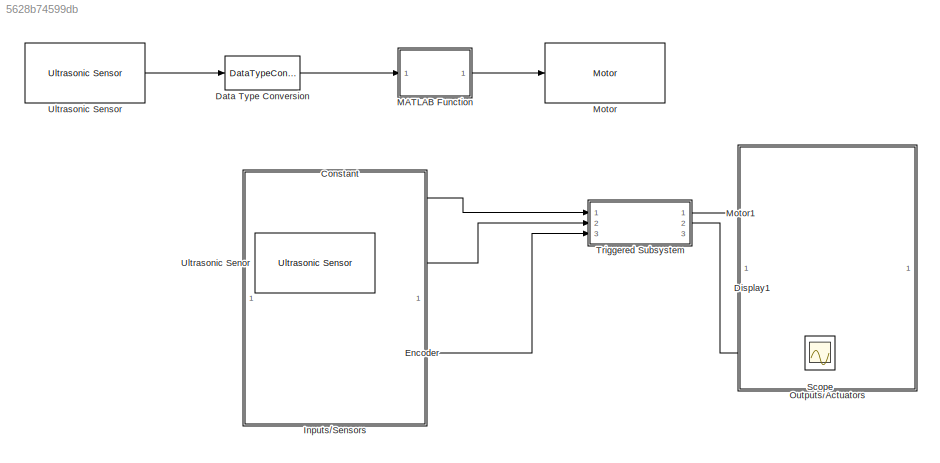
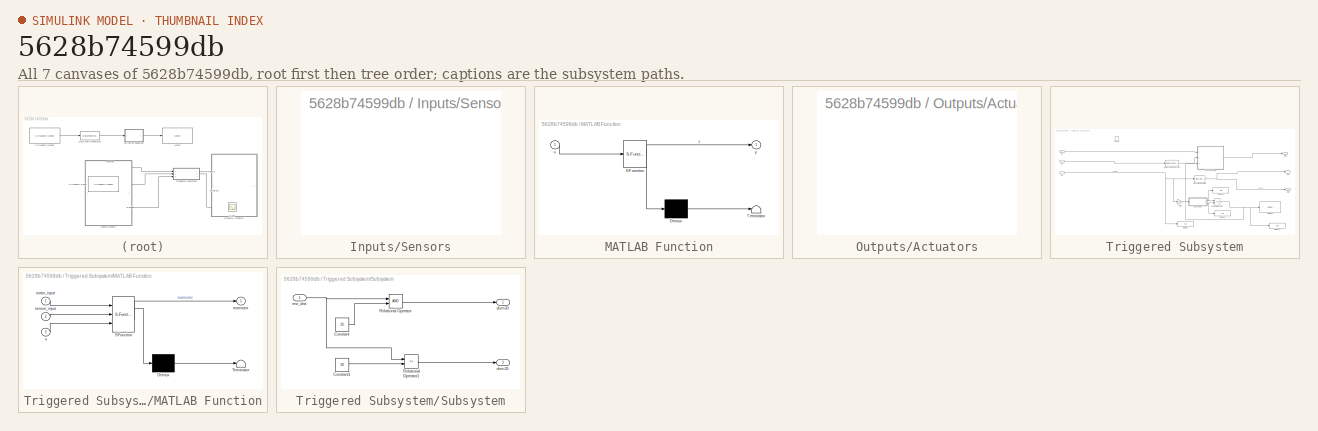
[diagram: thumbnail index - all 7 canvases of the model, root first then tree order]
MODEL slx_5628b74599db
KIND model
CONFIG AbsTol = auto
CONFIG FixedStep = auto
CONFIG MaxStep = auto
CONFIG MinStep = auto
CONFIG RelTol = 1e-3
CONFIG SampleTimeConstraint = Unconstrained
CONFIG Solver = ode3
CONFIG SolverMode = Auto
CONFIG SolverName = ode3
CONFIG StartTime = 0.0
CONFIG StopTime = 15
BLOCK [Constant] Constant
  Value = 20
BLOCK [DataTypeConversion] Data Type Conversion
  RndMeth = Floor
  SaturateOnIntegerOverflow = off
BLOCK [Display] Display1
  Decimation = 1
  Ports = [1]
BLOCK [Reference] Encoder  REF=legoev3lib/Encoder
  Ports = [0, 1]
  SourceBlock = legoev3lib/Encoder
  SourceType = LEGO MINDSTORMS EV3 Encoder
  opMode = No reset
  portNumber = A
  sampleTime = 0.01
BLOCK [SubSystem] Inputs//Sensors
  Ports = []
  RequestExecContextInheritance = off
  Variant = off
BLOCK [SubSystem] MATLAB Function
  ErrorFcn = Stateflow.Translate.translate
  PermitHierarchicalResolution = ParametersOnly
  Ports = [1, 1]
  RequestExecContextInheritance = off
  SFBlockType = MATLAB Function
  TreatAsAtomicUnit = on
  Variant = off
BLOCK [Demux] MATLAB Function/ Demux 
  Outputs = 1
  Ports = [1, 1]
BLOCK [S-Function] MATLAB Function/ SFunction 
  EnableBusSupport = off
  FunctionName = sf_sfun
  PortCounts = [1 2]
  Ports = [1, 2]
  SFunctionDeploymentMode = off
  Tag = Stateflow S-Function Main_detection 2
BLOCK [Terminator] MATLAB Function/ Terminator 
BLOCK [Inport] MATLAB Function/u
  IconDisplay = Port number
BLOCK [Outport] MATLAB Function/y
  IconDisplay = Port number
BLOCK [Reference] Motor  REF=legoev3lib/Motor
  Ports = [1]
  SourceBlock = legoev3lib/Motor
  SourceType = LEGO MINDSTORMS EV3 Motor
  sportNumber = A
  sstopAction = Brake
BLOCK [Reference] Motor1  REF=legoev3lib/Motor
  Ports = [1]
  SourceBlock = legoev3lib/Motor
  SourceType = LEGO MINDSTORMS EV3 Motor
  sportNumber = A
  sstopAction = Brake
BLOCK [SubSystem] Outputs//Actuators
  Ports = []
  RequestExecContextInheritance = off
  Variant = off
BLOCK [Scope] Scope
  DataFormat = StructureWithTime
  Decimation = 1
  Grid = on
  LimitDataPoints = off
  MaxDataPoints = 5000
  NumInputPorts = 1
  Ports = [1]
  SampleInput = off
  SampleTime = -1
  SaveName = acqData1
  SaveToWorkspace = on
  ShowLegends = off
  TickLabels = OneTimeTick
  TimeRange = auto
  YMax = 80
  YMin = -90
  ZoomMode = yonly
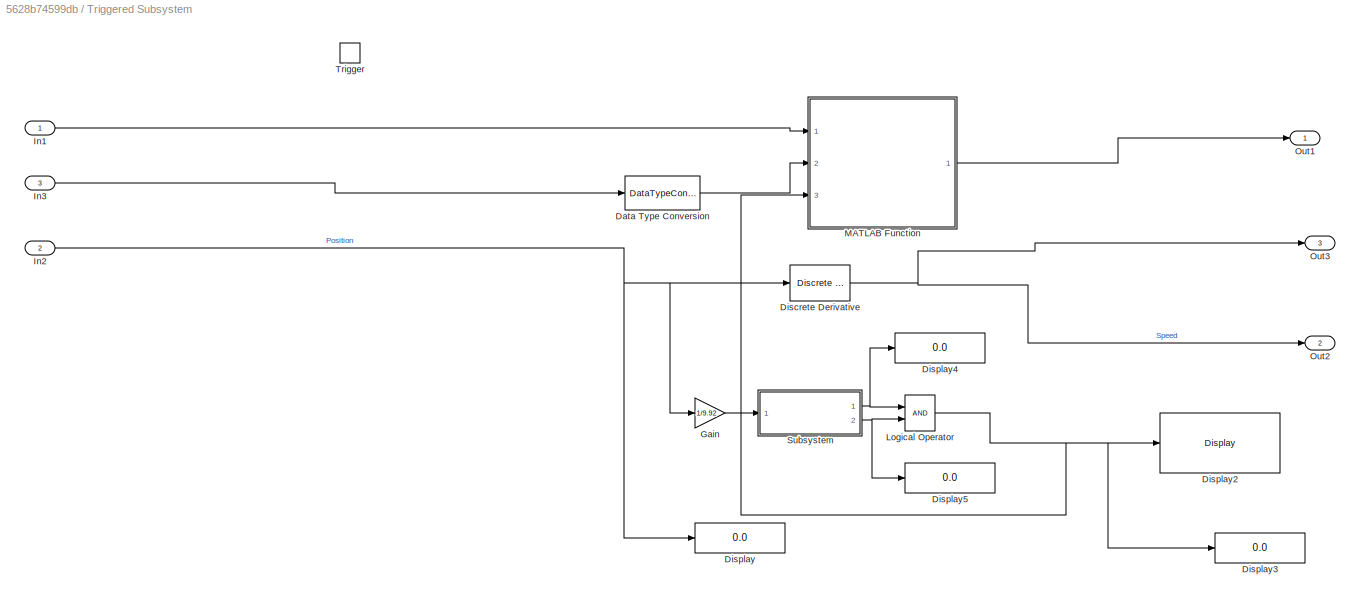
BLOCK [SubSystem] Triggered Subsystem
  Ports = [3, 3, 0, 1]
  RequestExecContextInheritance = off
  TreatAsAtomicUnit = on
  Variant = off
BLOCK [DataTypeConversion] Triggered Subsystem/Data Type Conversion
  RndMeth = Floor
  SaturateOnIntegerOverflow = off
BLOCK [Reference] Triggered Subsystem/Discrete Derivative  REF=simulink/Discrete/Discrete Derivative
  DoSatur = off
  ICPrevScaledInput = 800
  InputProcessing = Inherited
  LockScale = off
  OutDataType = fixdt(1, 16)
  OutDataTypeStr = double
  OutMax = []
  OutMin = []
  OutScaling = 2^-10
  OutputDataTypeScalingMode = double
  Ports = [1, 1]
  RndMeth = Floor
  SourceBlock = simulink/Discrete/Discrete Derivative
  SourceType = Discrete Derivative
  gainval = 1.0
BLOCK [Display] Triggered Subsystem/Display
  Decimation = 1
  Ports = [1]
BLOCK [Reference] Triggered Subsystem/Display2  REF=legoev3lib/Display
  Ports = [1]
  SourceBlock = legoev3lib/Display
  SourceType = LEGO MINDSTORMS EV3 Display
  slcdFormat = Decimal
  slcdLine = 1
  slcdStr = Obj_Det
BLOCK [Display] Triggered Subsystem/Display3
  Decimation = 1
  Ports = [1]
BLOCK [Display] Triggered Subsystem/Display4
  Decimation = 1
  Ports = [1]
BLOCK [Display] Triggered Subsystem/Display5
  Decimation = 1
  Ports = [1]
BLOCK [Gain] Triggered Subsystem/Gain
  Gain = 1/9.92
  OutDataTypeStr = Inherit: Inherit via internal rule
  ParamDataTypeStr = Inherit: Inherit via internal rule
  SaturateOnIntegerOverflow = off
BLOCK [Inport] Triggered Subsystem/In1
  IconDisplay = Port number
BLOCK [Inport] Triggered Subsystem/In2
  IconDisplay = Port number
  Port = 2
BLOCK [Inport] Triggered Subsystem/In3
  IconDisplay = Port number
  Port = 3
BLOCK [Logic] Triggered Subsystem/Logical Operator
  AllPortsSameDT = off
  OutDataTypeStr = boolean
  Ports = [2, 1]
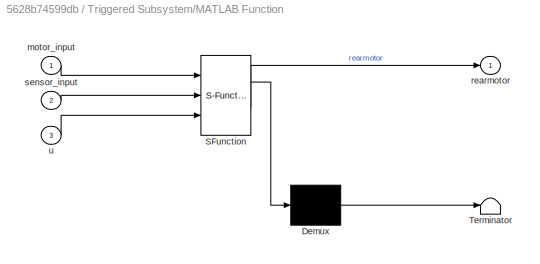
BLOCK [SubSystem] Triggered Subsystem/MATLAB Function
  ErrorFcn = Stateflow.Translate.translate
  PermitHierarchicalResolution = ParametersOnly
  Ports = [3, 1]
  RequestExecContextInheritance = off
  SFBlockType = MATLAB Function
  TreatAsAtomicUnit = on
  Variant = off
BLOCK [Demux] Triggered Subsystem/MATLAB Function/ Demux 
  Outputs = 1
  Ports = [1, 1]
BLOCK [S-Function] Triggered Subsystem/MATLAB Function/ SFunction 
  EnableBusSupport = off
  FunctionName = sf_sfun
  PortCounts = [3 2]
  Ports = [3, 2]
  SFunctionDeploymentMode = off
  Tag = Stateflow S-Function Main_detection 1
BLOCK [Terminator] Triggered Subsystem/MATLAB Function/ Terminator 
BLOCK [Inport] Triggered Subsystem/MATLAB Function/motor_input
  IconDisplay = Port number
BLOCK [Outport] Triggered Subsystem/MATLAB Function/rearmotor
  IconDisplay = Port number
BLOCK [Inport] Triggered Subsystem/MATLAB Function/sensor_input
  IconDisplay = Port number
  Port = 2
BLOCK [Inport] Triggered Subsystem/MATLAB Function/u
  IconDisplay = Port number
  Port = 3
BLOCK [Outport] Triggered Subsystem/Out1
  IconDisplay = Port number
BLOCK [Outport] Triggered Subsystem/Out2
  IconDisplay = Port number
  Port = 2
BLOCK [Outport] Triggered Subsystem/Out3
  IconDisplay = Port number
  Port = 3
BLOCK [SubSystem] Triggered Subsystem/Subsystem
  Ports = [1, 2]
  RequestExecContextInheritance = off
  Variant = off
BLOCK [Constant] Triggered Subsystem/Subsystem/Constant
  Value = 30
BLOCK [Constant] Triggered Subsystem/Subsystem/Constant1
  Value = 36
BLOCK [RelationalOperator] Triggered Subsystem/Subsystem/Relational Operator
  InputSameDT = off
  OutDataTypeStr = boolean
  Ports = [2, 1]
BLOCK [RelationalOperator] Triggered Subsystem/Subsystem/Relational Operator1
  InputSameDT = off
  Operator = <=
  OutDataTypeStr = boolean
  Ports = [2, 1]
BLOCK [Outport] Triggered Subsystem/Subsystem/dist<35
  IconDisplay = Port number
  Port = 2
BLOCK [Outport] Triggered Subsystem/Subsystem/dist>30
  IconDisplay = Port number
BLOCK [Inport] Triggered Subsystem/Subsystem/enc_dist
  IconDisplay = Port number
BLOCK [TriggerPort] Triggered Subsystem/Trigger
  Ports = []
  StatesWhenEnabling = held
  TriggerType = function-call
BLOCK [Reference] Ultrasonic Senor  REF=legoev3lib/Ultrasonic Sensor
  PortNumber = 1
  Ports = [0, 1]
  SourceBlock = legoev3lib/Ultrasonic Sensor
  SourceType = LEGO MINDSTORMS EV3 Ultrasonic Sensor
  sampleTime = 0.01
BLOCK [Reference] Ultrasonic Sensor  REF=legoev3lib/Ultrasonic Sensor
  PortNumber = 1
  Ports = [0, 1]
  SourceBlock = legoev3lib/Ultrasonic Sensor
  SourceType = LEGO MINDSTORMS EV3 Ultrasonic Sensor
  sampleTime = 0.1
LINE Constant:1 -> Triggered Subsystem:1
LINE Data Type Conversion:1 -> MATLAB Function:1
LINE Encoder:1 -> Triggered Subsystem:3
LINE MATLAB Function:1 -> Motor:1
LINE Triggered Subsystem/Data Type Conversion:1 -> Triggered Subsystem/MATLAB Function:2
NET Triggered Subsystem/Discrete Derivative:1 -> Triggered Subsystem/Out2:1, Triggered Subsystem/Out3:1
LINE Triggered Subsystem/Gain:1 -> Triggered Subsystem/Subsystem:1
LINE Triggered Subsystem/In1:1 -> Triggered Subsystem/MATLAB Function:1
NET Triggered Subsystem/In2:1 -> Triggered Subsystem/Discrete Derivative:1, Triggered Subsystem/Display:1, Triggered Subsystem/Gain:1
LINE Triggered Subsystem/In3:1 -> Triggered Subsystem/Data Type Conversion:1
NET Triggered Subsystem/Logical Operator:1 -> Triggered Subsystem/Display2:1, Triggered Subsystem/Display3:1, Triggered Subsystem/MATLAB Function:3
LINE Triggered Subsystem/MATLAB Function:1 -> Triggered Subsystem/Out1:1
LINE Triggered Subsystem/Subsystem/Constant1:1 -> Triggered Subsystem/Subsystem/Relational Operator1:2
LINE Triggered Subsystem/Subsystem/Constant:1 -> Triggered Subsystem/Subsystem/Relational Operator:2
LINE Triggered Subsystem/Subsystem/Relational Operator1:1 -> Triggered Subsystem/Subsystem/dist<35:1
LINE Triggered Subsystem/Subsystem/Relational Operator:1 -> Triggered Subsystem/Subsystem/dist>30:1
NET Triggered Subsystem/Subsystem/enc_dist:1 -> Triggered Subsystem/Subsystem/Relational Operator1:1, Triggered Subsystem/Subsystem/Relational Operator:1
NET Triggered Subsystem/Subsystem:1 -> Triggered Subsystem/Display4:1, Triggered Subsystem/Logical Operator:1
NET Triggered Subsystem/Subsystem:2 -> Triggered Subsystem/Display5:1, Triggered Subsystem/Logical Operator:2
LINE Triggered Subsystem:1 -> Motor1:1
LINE Triggered Subsystem:2 -> Scope:1
LINE Ultrasonic Senor:1 -> Triggered Subsystem:2
LINE Ultrasonic Sensor:1 -> Data Type Conversion:1
note: NET lines group one-source signal fan-out (src -> all destinations, sorted); 1:1 wires keep LINE
CHART Triggered
Subsystem/MATLAB Function states=1 transitions=1
  STATE_LABEL 'eML_blk_kernel()'
  STATE_LABEL 'SCRIPT:\nfunction rearmotor = fcn(motor_input,sensor_input,u)\n%#codegen\nif(sensor_input>4)&&(sensor_input<=20)&& (u==1)\n    rearmotor=motor_input;\n%elseif(sensor_input>20)&&(sensor_input<=35)\n %   rearmotor=motor_input;\nelse\n    rearmotor=0;\nend\nend'
CHART MATLAB Function states=1 transitions=1
  STATE_LABEL 'eML_blk_kernel()'
  STATE_LABEL 'SCRIPT:\nfunction y = fcn(u)\n\nif(u<4)&&(u>=40) \n    y = 20;\n    \n    \nend\nend\n'
